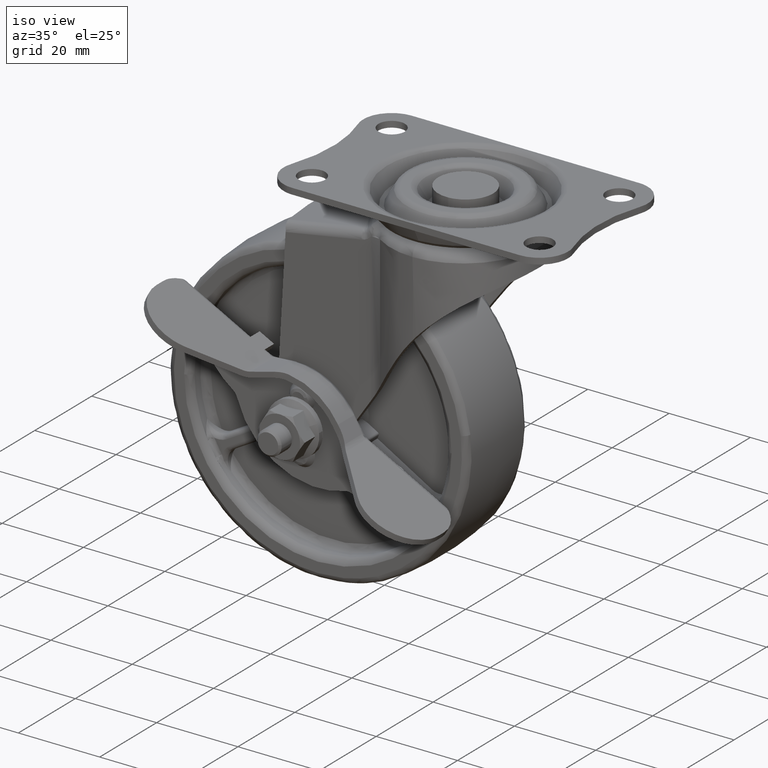
[diagram: clean part render]
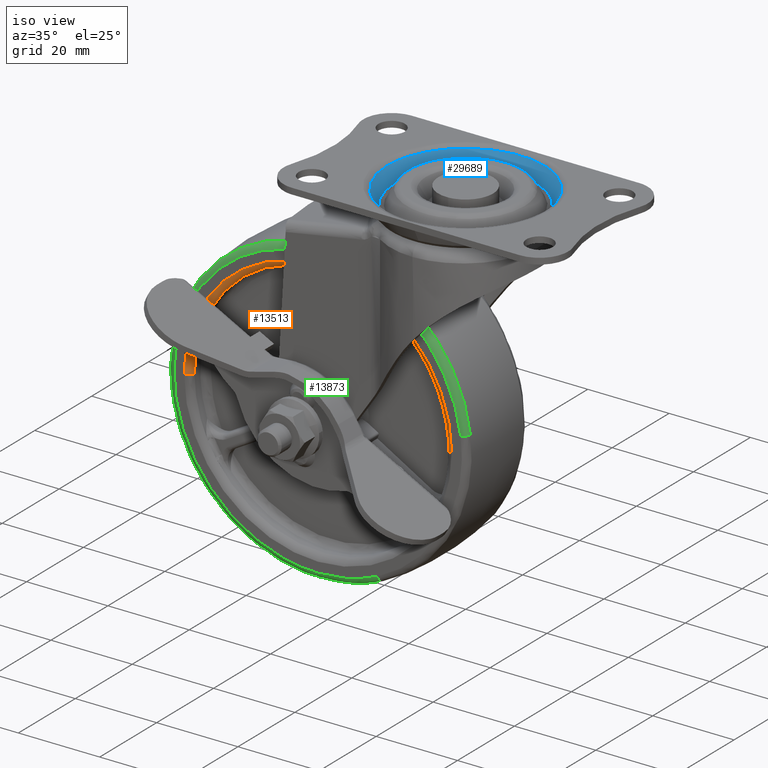
[diagram: same view with three faces highlighted in distinct colors, each labeled with its STEP entity id]
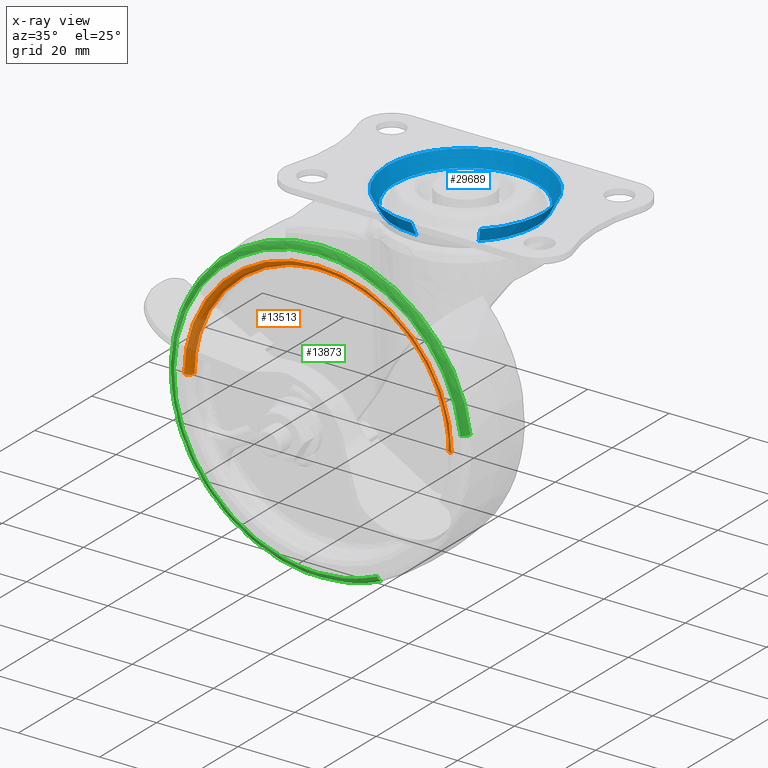
[diagram: x-ray of the same camera — body ghosted, the three highlighted faces saturated]
A machine part, iso view with three faces highlighted in distinct colors.
The next image is the same camera in x-ray (body ghosted, the three faces saturated) — at least one of them is partly hidden behind the body in this view.
Their STEP definitions:

[orange] entity #13513 — the highlighted face is a freeform B-spline surface patch.
#13379=CARTESIAN_POINT('',(4.004027370578045,-10.496388420888982,-52.999995999999996));
#13380=CARTESIAN_POINT('',(4.004027370578050,-10.496388420888980,-19.995968629421974));
#13381=CARTESIAN_POINT('',(-28.999999999999996,-10.496388420888982,-19.995968629421963));
#13382=CARTESIAN_POINT('',(-62.004027370578029,-10.496388420888980,-19.995968629421956));
#13383=CARTESIAN_POINT('',(-62.004027370578044,-10.496388420888982,-52.999995999999996));
#13384=CARTESIAN_POINT('',(2.283390871203736,-10.616005285235074,-52.999996000000003));
#13385=CARTESIAN_POINT('',(2.283390871203743,-10.616005285235072,-21.716605128796267));
#13386=CARTESIAN_POINT('',(-29.0,-10.616005285235074,-21.716605128796271));
#13387=CARTESIAN_POINT('',(-60.283390871203721,-10.616005285235072,-21.716605128796257));
#13388=CARTESIAN_POINT('',(-60.283390871203721,-10.616005285235074,-52.999995999999989));
#13389=CARTESIAN_POINT('',(2.403650547595809,-8.895413594144728,-52.999996000000017));
#13390=CARTESIAN_POINT('',(2.403650547595813,-8.895413594144729,-21.596345452404208));
#13391=CARTESIAN_POINT('',(-29.000000000000004,-8.895413594144728,-21.596345452404204));
#13392=CARTESIAN_POINT('',(-60.403650547595781,-8.895413594144729,-21.596345452404194));
#13393=CARTESIAN_POINT('',(-60.403650547595817,-8.895413594144728,-52.999995999999996));
#13401=(BOUNDED_SURFACE()B_SPLINE_SURFACE(2,2,((#13379,#13384,#13389),(#13380,#13385,#13390),(#13381,#13386,#13391),(#13382,#13387,#13392),(#13383,#13388,#13393)),.UNSPECIFIED.,.F.,.F.,.U.)B_SPLINE_SURFACE_WITH_KNOTS((3,2,3),(3,3),(0.0,54.682862999305058,109.365725998610100),(0.0,2.733557470195423),.UNSPECIFIED.)GEOMETRIC_REPRESENTATION_ITEM()RATIONAL_B_SPLINE_SURFACE(((0.910068603666740,0.595552741890964,0.905027209731593),(0.643515680997725,0.421119382345342,0.639950877159549),(0.910068603666740,0.595552741890964,0.905027209731593),(0.643515680997725,0.421119382345342,0.639950877159549),(0.910068603666740,0.595552741890964,0.905027209731593)))REPRESENTATION_ITEM('')SURFACE());
#13402=CARTESIAN_POINT('',(3.899999998638952,-10.500000000000000,-52.999996000000010));
#13403=VERTEX_POINT('',#13402);
#13404=CARTESIAN_POINT('',(-29.0,-10.500000000000000,-20.099996000000001));
#13405=VERTEX_POINT('',#13404);
#13406=CARTESIAN_POINT('',(3.899999998638952,-10.500000000000002,-52.999996000000017));
#13407=CARTESIAN_POINT('',(3.900000000000003,-10.500000000000000,-20.099996000000001));
#13408=CARTESIAN_POINT('',(-29.0,-10.500000000000000,-20.099996000000001));
#13416=(BOUNDED_CURVE()B_SPLINE_CURVE(2,(#13406,#13407,#13408),.UNSPECIFIED.,.F.,.U.)B_SPLINE_CURVE_WITH_KNOTS((3,3),(0.250000000000000,0.500000000000000),.UNSPECIFIED.)CURVE()GEOMETRIC_REPRESENTATION_ITEM()RATIONAL_B_SPLINE_CURVE((1.000000000000000,0.707106781186547,1.0))REPRESENTATION_ITEM(''));
#13417=EDGE_CURVE('',#13403,#13405,#13416,.T.);
#13418=ORIENTED_EDGE('',*,*,#13417,.T.);
#13419=CARTESIAN_POINT('',(-61.899999998638947,-10.500000000000000,-52.999996000000003));
#13420=VERTEX_POINT('',#13419);
#13421=CARTESIAN_POINT('',(-29.0,-10.500000000000000,-20.099996000000001));
#13422=CARTESIAN_POINT('',(-61.899999999999828,-10.500000000000000,-20.099995999999997));
#13423=CARTESIAN_POINT('',(-61.899999998638954,-10.500000000000002,-52.999995999999996));
#13431=(BOUNDED_CURVE()B_SPLINE_CURVE(2,(#13421,#13422,#13423),.UNSPECIFIED.,.F.,.U.)B_SPLINE_CURVE_WITH_KNOTS((3,3),(0.500000000000000,0.749999999999999),.UNSPECIFIED.)CURVE()GEOMETRIC_REPRESENTATION_ITEM()RATIONAL_B_SPLINE_CURVE((1.0,0.707106781186549,0.999999999999998))REPRESENTATION_ITEM(''));
#13432=EDGE_CURVE('',#13405,#13420,#13431,.T.);
#13433=ORIENTED_EDGE('',*,*,#13432,.T.);
#13434=CARTESIAN_POINT('',(-60.399999999999991,-9.000000001035696,-52.999996000000010));
#13435=VERTEX_POINT('',#13434);
#13436=CARTESIAN_POINT('',(-61.899999998638968,-10.500000000000000,-52.999995999999996));
#13437=CARTESIAN_POINT('',(-60.400000002071380,-10.499999997277918,-52.999996000000003));
#13438=CARTESIAN_POINT('',(-60.399999999999999,-9.000000001035698,-52.999996000000010));
#13446=(BOUNDED_CURVE()B_SPLINE_CURVE(2,(#13436,#13437,#13438),.UNSPECIFIED.,.F.,.U.)B_SPLINE_CURVE_WITH_KNOTS((3,3),(-1.726807297659921,-0.285995335448263),.UNSPECIFIED.)CURVE()GEOMETRIC_REPRESENTATION_ITEM()RATIONAL_B_SPLINE_CURVE((0.882788775549554,0.622603438321529,0.878205638556592))REPRESENTATION_ITEM(''));
#13447=EDGE_CURVE('',#13420,#13435,#13446,.T.);
#13448=ORIENTED_EDGE('',*,*,#13447,.T.);
#13449=CARTESIAN_POINT('',(-30.905903414708501,-9.0,-21.657891217873399));
#13450=VERTEX_POINT('',#13449);
#13451=CARTESIAN_POINT('',(-30.905903414708490,-9.0,-21.657891217873409));
#13452=CARTESIAN_POINT('',(-47.753721379693459,-9.0,-22.682401665179533));
#13453=CARTESIAN_POINT('',(-56.193194235143807,-9.0,-37.299990035359698));
#13454=CARTESIAN_POINT('',(-60.399999999999999,-9.0,-44.586387666730133));
#13455=CARTESIAN_POINT('',(-60.399999999999984,-9.000000001035696,-52.999996000000003));
#13463=(BOUNDED_CURVE()B_SPLINE_CURVE(2,(#13451,#13452,#13453,#13454,#13455),.UNSPECIFIED.,.F.,.U.)B_SPLINE_CURVE_WITH_KNOTS((3,2,3),(0.0,0.500000000000000,0.765080099151672),.UNSPECIFIED.)CURVE()GEOMETRIC_REPRESENTATION_ITEM()RATIONAL_B_SPLINE_CURVE((1.0,0.880807559666287,1.0,0.936808912196420,0.940620623674739))REPRESENTATION_ITEM(''));
#13464=EDGE_CURVE('',#13450,#13435,#13463,.T.);
#13465=ORIENTED_EDGE('',*,*,#13464,.F.);
#13466=CARTESIAN_POINT('',(-27.094082835941901,-9.0,-21.657892053969999));
#13467=VERTEX_POINT('',#13466);
#13468=CARTESIAN_POINT('',(-27.094082835941901,-9.0,-21.657892053970009));
#13469=CARTESIAN_POINT('',(-28.999993099903730,-9.0,-21.541993418336155));
#13470=CARTESIAN_POINT('',(-30.905903414708490,-9.0,-21.657891217873409));
#13478=(BOUNDED_CURVE()B_SPLINE_CURVE(2,(#13468,#13469,#13470),.UNSPECIFIED.,.F.,.U.)CURVE()GEOMETRIC_REPRESENTATION_ITEM()QUASI_UNIFORM_CURVE()RATIONAL_B_SPLINE_CURVE((1.0,0.998156189938823,1.0))REPRESENTATION_ITEM(''));
#13479=EDGE_CURVE('',#13467,#13450,#13478,.T.);
#13480=ORIENTED_EDGE('',*,*,#13479,.F.);
#13481=CARTESIAN_POINT('',(2.399999999999991,-9.000000001039036,-52.999996000000010));
#13482=VERTEX_POINT('',#13481);
#13483=CARTESIAN_POINT('',(2.399999999999991,-9.000000001039036,-52.999996000000010));
#13484=CARTESIAN_POINT('',(2.399999999999995,-9.000000000000002,-44.586395048595129));
#13485=CARTESIAN_POINT('',(-1.806798877482384,-9.0,-37.300001964641062));
#13486=CARTESIAN_POINT('',(-10.246265320397189,-9.0,-22.682409892181788));
#13487=CARTESIAN_POINT('',(-27.094082835941901,-9.0,-21.657892053970009));
#13495=(BOUNDED_CURVE()B_SPLINE_CURVE(2,(#13483,#13484,#13485,#13486,#13487),.UNSPECIFIED.,.F.,.U.)B_SPLINE_CURVE_WITH_KNOTS((3,2,3),(0.234920118725620,0.500000000000000,1.0),.UNSPECIFIED.)CURVE()GEOMETRIC_REPRESENTATION_ITEM()RATIONAL_B_SPLINE_CURVE((0.940620617408865,0.936808964135072,1.0,0.880807559666288,1.0))REPRESENTATION_ITEM(''));
#13496=EDGE_CURVE('',#13482,#13467,#13495,.T.);
#13497=ORIENTED_EDGE('',*,*,#13496,.F.);
#13498=CARTESIAN_POINT('',(3.899999998638952,-10.500000000000000,-52.999996000000010));
#13499=CARTESIAN_POINT('',(2.400000002078055,-10.499999997277921,-52.999996000000010));
#13500=CARTESIAN_POINT('',(2.399999999999991,-9.000000001039036,-52.999996000000010));
#13508=(BOUNDED_CURVE()B_SPLINE_CURVE(2,(#13498,#13499,#13500),.UNSPECIFIED.,.F.,.U.)B_SPLINE_CURVE_WITH_KNOTS((3,3),(-1.726807297659923,-0.285995335452785),.UNSPECIFIED.)CURVE()GEOMETRIC_REPRESENTATION_ITEM()RATIONAL_B_SPLINE_CURVE((0.882788775549554,0.622603438322345,0.878205638554987))REPRESENTATION_ITEM(''));
#13509=EDGE_CURVE('',#13403,#13482,#13508,.T.);
#13510=ORIENTED_EDGE('',*,*,#13509,.F.);
#13511=EDGE_LOOP('',(#13418,#13433,#13448,#13465,#13480,#13497,#13510));
#13512=FACE_OUTER_BOUND('',#13511,.T.);
#13513=ADVANCED_FACE('',(#13512),#13401,.T.);

[blue] entity #29689 — the highlighted face is a freeform B-spline surface patch.
#29519=CARTESIAN_POINT('',(12.036305673494859,-12.638677654428708,-2.887699185253217));
#29520=CARTESIAN_POINT('',(17.518445294510880,-7.417822274815131,-2.887699185253217));
#29521=CARTESIAN_POINT('',(17.452381797865652,0.152304628583828,-2.887699185253217));
#29522=CARTESIAN_POINT('',(17.300077169281824,17.604686426449472,-2.887699185253217));
#29523=CARTESIAN_POINT('',(-0.152304628583828,17.452381797865652,-2.887699185253217));
#29524=CARTESIAN_POINT('',(-17.604686426449472,17.300077169281824,-2.887699185253217));
#29525=CARTESIAN_POINT('',(-17.452381797865652,-0.152304628583828,-2.887699185253217));
#29526=CARTESIAN_POINT('',(-17.300077169281824,-17.604686426449472,-2.887699185253217));
#29527=CARTESIAN_POINT('',(0.152304628583828,-17.452381797865652,-2.887699185253217));
#29528=CARTESIAN_POINT('',(13.397120359779654,-14.067596014755807,0.797890989297241));
#29529=CARTESIAN_POINT('',(19.499066116574550,-8.256475077896351,0.797890989297241));
#29530=CARTESIAN_POINT('',(19.425533536067469,0.169524062934222,0.797890989297241));
#29531=CARTESIAN_POINT('',(19.256009473133251,19.595057599001699,0.797890989297241));
#29532=CARTESIAN_POINT('',(-0.169524062934222,19.425533536067469,0.797890989297241));
#29533=CARTESIAN_POINT('',(-19.595057599001699,19.256009473133251,0.797890989297241));
#29534=CARTESIAN_POINT('',(-19.425533536067469,-0.169524062934222,0.797890989297241));
#29535=CARTESIAN_POINT('',(-19.256009473133251,-19.595057599001699,0.797890989297241));
#29536=CARTESIAN_POINT('',(0.169524062934222,-19.425533536067469,0.797890989297241));
#29544=(BOUNDED_SURFACE()B_SPLINE_SURFACE(2,1,((#29519,#29528),(#29520,#29529),(#29521,#29530),(#29522,#29531),(#29523,#29532),(#29524,#29533),(#29525,#29534),(#29526,#29535),(#29527,#29536)),.UNSPECIFIED.,.F.,.F.,.U.)B_SPLINE_SURFACE_WITH_KNOTS((3,2,2,2,3),(2,2),(0.0,16.736981742682659,48.923485093995453,81.109988445308232,113.296491796621000),(0.0,4.180574030636358),.UNSPECIFIED.)GEOMETRIC_REPRESENTATION_ITEM()RATIONAL_B_SPLINE_SURFACE(((0.853787705168325,0.853787705168325),(0.847695526217005,0.847695526217005),(1.0,1.0),(0.707106781186548,0.707106781186548),(1.0,1.0),(0.707106781186548,0.707106781186548),(1.0,1.0),(0.707106781186548,0.707106781186548),(1.0,1.0)))REPRESENTATION_ITEM('')SURFACE());
#29545=CARTESIAN_POINT('',(13.363929755360310,-14.032744344993271,0.707998539736880));
#29546=VERTEX_POINT('',#29545);
#29547=CARTESIAN_POINT('',(19.378145740966652,0.0,0.707998539736826));
#29548=VERTEX_POINT('',#29547);
#29549=CARTESIAN_POINT('',(13.363929755360303,-14.032744344993262,0.707998539736880));
#29550=CARTESIAN_POINT('',(19.378145740966655,-8.305171890933407,0.707998539736826));
#29551=CARTESIAN_POINT('',(19.378145740966652,0.0,0.707998539736826));
#29559=(BOUNDED_CURVE()B_SPLINE_CURVE(2,(#29549,#29550,#29551),.UNSPECIFIED.,.F.,.U.)B_SPLINE_CURVE_WITH_KNOTS((3,3),(0.371317023849581,0.500000000000000),.UNSPECIFIED.)CURVE()GEOMETRIC_REPRESENTATION_ITEM()RATIONAL_B_SPLINE_CURVE((0.853680523245774,0.849238515635236,1.0))REPRESENTATION_ITEM(''));
#29560=EDGE_CURVE('',#29546,#29548,#29559,.T.);
#29561=ORIENTED_EDGE('',*,*,#29560,.T.);
#29562=CARTESIAN_POINT('',(7.086251062903790,18.036007827729520,0.707998546015523));
#29563=VERTEX_POINT('',#29562);
#29564=CARTESIAN_POINT('',(19.378145740966652,0.0,0.707998539736826));
#29565=CARTESIAN_POINT('',(19.378145740966662,13.206588112057140,0.707998539736826));
#29566=CARTESIAN_POINT('',(7.086251062903790,18.036007827729520,0.707998546015523));
#29574=(BOUNDED_CURVE()B_SPLINE_CURVE(2,(#29564,#29565,#29566),.UNSPECIFIED.,.F.,.U.)B_SPLINE_CURVE_WITH_KNOTS((3,3),(0.500000000000000,0.687908131213872),.UNSPECIFIED.)CURVE()GEOMETRIC_REPRESENTATION_ITEM()RATIONAL_B_SPLINE_CURVE((1.0,0.779851930430194,0.890644759606018))REPRESENTATION_ITEM(''));
#29575=EDGE_CURVE('',#29548,#29563,#29574,.T.);
#29576=ORIENTED_EDGE('',*,*,#29575,.T.);
#29577=CARTESIAN_POINT('',(-17.097167974268679,9.121369399757967,0.707998544992555));
#29578=VERTEX_POINT('',#29577);
#29579=CARTESIAN_POINT('',(7.086251062903790,18.036007827729524,0.707998546015523));
#29580=CARTESIAN_POINT('',(3.670226177731497,19.378145740966652,0.707998539736826));
#29581=CARTESIAN_POINT('',(0.0,19.378145740966652,0.707998539736826));
#29582=CARTESIAN_POINT('',(-11.625159624386034,19.378145740966655,0.707998539736826));
#29583=CARTESIAN_POINT('',(-17.097167974268679,9.121369399757967,0.707998544992555));
#29591=(BOUNDED_CURVE()B_SPLINE_CURVE(2,(#29579,#29580,#29581,#29582,#29583),.UNSPECIFIED.,.F.,.U.)B_SPLINE_CURVE_WITH_KNOTS((3,2,3),(0.687908131213873,0.750000000000000,0.919885466190171),.UNSPECIFIED.)CURVE()GEOMETRIC_REPRESENTATION_ITEM()RATIONAL_B_SPLINE_CURVE((0.890644759606019,0.927254850756355,1.0,0.800966795911747,0.872436381134345))REPRESENTATION_ITEM(''));
#29592=EDGE_CURVE('',#29563,#29578,#29591,.T.);
#29593=ORIENTED_EDGE('',*,*,#29592,.T.);
#29594=CARTESIAN_POINT('',(-19.378145740966652,0.0,0.707998539736826));
#29595=VERTEX_POINT('',#29594);
#29596=CARTESIAN_POINT('',(-17.097167974268675,9.121369399757967,0.707998544992555));
#29597=CARTESIAN_POINT('',(-19.378145740966655,4.845886369996108,0.707998539736826));
#29598=CARTESIAN_POINT('',(-19.378145740966652,0.0,0.707998539736826));
#29606=(BOUNDED_CURVE()B_SPLINE_CURVE(2,(#29596,#29597,#29598),.UNSPECIFIED.,.F.,.U.)B_SPLINE_CURVE_WITH_KNOTS((3,3),(0.919885466190172,1.0),.UNSPECIFIED.)CURVE()GEOMETRIC_REPRESENTATION_ITEM()RATIONAL_B_SPLINE_CURVE((0.872436381134345,0.906139985274801,1.0))REPRESENTATION_ITEM(''));
#29607=EDGE_CURVE('',#29578,#29595,#29606,.T.);
#29608=ORIENTED_EDGE('',*,*,#29607,.T.);
#29609=CARTESIAN_POINT('',(0.169104076704414,-19.377407880555069,0.707998539737401));
#29610=VERTEX_POINT('',#29609);
#29611=CARTESIAN_POINT('',(-19.378145740966652,0.0,0.707998539736826));
#29612=CARTESIAN_POINT('',(-19.378145740966659,-19.378145740966659,0.707998539736826));
#29613=CARTESIAN_POINT('',(0.0,-19.378145740966652,0.707998539736826));
#29614=CARTESIAN_POINT('',(0.084553648125725,-19.378145740966655,0.707998539736826));
#29615=CARTESIAN_POINT('',(0.169104076704414,-19.377407880555065,0.707998539737401));
#29623=(BOUNDED_CURVE()B_SPLINE_CURVE(2,(#29611,#29612,#29613,#29614,#29615),.UNSPECIFIED.,.F.,.U.)B_SPLINE_CURVE_WITH_KNOTS((3,2,3),(0.0,0.250000000000000,0.251539894335045),.UNSPECIFIED.)CURVE()GEOMETRIC_REPRESENTATION_ITEM()RATIONAL_B_SPLINE_CURVE((1.0,0.707106781186548,1.0,0.998195901566304,0.996414028100271))REPRESENTATION_ITEM(''));
#29624=EDGE_CURVE('',#29595,#29610,#29623,.T.);
#29625=ORIENTED_EDGE('',*,*,#29624,.T.);
#29626=CARTESIAN_POINT('',(0.152714371232738,-17.499333653623971,-2.799999240586109));
#29627=VERTEX_POINT('',#29626);
#29628=CARTESIAN_POINT('',(0.152714371232738,-17.499333653623971,-2.799999240586109));
#29629=CARTESIAN_POINT('',(0.169104076704414,-19.377407880555069,0.707998539737401));
#29630=QUASI_UNIFORM_CURVE('',1,(#29628,#29629),.UNSPECIFIED.,.F.,.U.);
#29631=EDGE_CURVE('',#29627,#29610,#29630,.T.);
#29632=ORIENTED_EDGE('',*,*,#29631,.F.);
#29633=CARTESIAN_POINT('',(-17.500000000000000,0.0,-2.799999240588125));
#29634=VERTEX_POINT('',#29633);
#29635=CARTESIAN_POINT('',(0.152714371232738,-17.499333653623964,-2.799999240586109));
#29636=CARTESIAN_POINT('',(0.076358639373457,-17.500000000000004,-2.799999240588126));
#29637=CARTESIAN_POINT('',(0.0,-17.500000000000000,-2.799999240588125));
#29638=CARTESIAN_POINT('',(-17.499999999999996,-17.499999999999996,-2.799999240588126));
#29639=CARTESIAN_POINT('',(-17.500000000000000,0.0,-2.799999240588125));
#29647=(BOUNDED_CURVE()B_SPLINE_CURVE(2,(#29635,#29636,#29637,#29638,#29639),.UNSPECIFIED.,.F.,.U.)B_SPLINE_CURVE_WITH_KNOTS((3,2,3),(0.748460105664788,0.750000000000000,1.0),.UNSPECIFIED.)CURVE()GEOMETRIC_REPRESENTATION_ITEM()RATIONAL_B_SPLINE_CURVE((0.996414028099885,0.998195901566108,1.0,0.707106781186548,1.0))REPRESENTATION_ITEM(''));
#29648=EDGE_CURVE('',#29627,#29634,#29647,.T.);
#29649=ORIENTED_EDGE('',*,*,#29648,.T.);
#29650=CARTESIAN_POINT('',(17.500000000000000,0.0,-2.799999240588125));
#29651=VERTEX_POINT('',#29650);
#29652=CARTESIAN_POINT('',(-17.500000000000000,0.0,-2.799999240588125));
#29653=CARTESIAN_POINT('',(-17.499999999999996,17.499999999999996,-2.799999240588126));
#29654=CARTESIAN_POINT('',(0.0,17.500000000000000,-2.799999240588125));
#29655=CARTESIAN_POINT('',(17.499999999999996,17.499999999999996,-2.799999240588126));
#29656=CARTESIAN_POINT('',(17.500000000000000,0.0,-2.799999240588125));
#29664=(BOUNDED_CURVE()B_SPLINE_CURVE(2,(#29652,#29653,#29654,#29655,#29656),.UNSPECIFIED.,.F.,.U.)B_SPLINE_CURVE_WITH_KNOTS((3,2,3),(0.0,0.250000000000000,0.500000000000000),.UNSPECIFIED.)CURVE()GEOMETRIC_REPRESENTATION_ITEM()RATIONAL_B_SPLINE_CURVE((1.0,0.707106781186548,1.0,0.707106781186548,1.0))REPRESENTATION_ITEM(''));
#29665=EDGE_CURVE('',#29634,#29651,#29664,.T.);
#29666=ORIENTED_EDGE('',*,*,#29665,.T.);
#29667=CARTESIAN_POINT('',(12.068686748720079,-12.672679281086079,-2.799999240588099));
#29668=VERTEX_POINT('',#29667);
#29669=CARTESIAN_POINT('',(17.500000000000000,0.0,-2.799999240588125));
#29670=CARTESIAN_POINT('',(17.499999999999996,-7.500227835738187,-2.799999240588126));
#29671=CARTESIAN_POINT('',(12.068686748720083,-12.672679281086085,-2.799999240588100));
#29679=(BOUNDED_CURVE()B_SPLINE_CURVE(2,(#29669,#29670,#29671),.UNSPECIFIED.,.F.,.U.)B_SPLINE_CURVE_WITH_KNOTS((3,3),(0.500000000000000,0.628682976150460),.UNSPECIFIED.)CURVE()GEOMETRIC_REPRESENTATION_ITEM()RATIONAL_B_SPLINE_CURVE((1.0,0.849238515635188,0.853680523245776))REPRESENTATION_ITEM(''));
#29680=EDGE_CURVE('',#29651,#29668,#29679,.T.);
#29681=ORIENTED_EDGE('',*,*,#29680,.T.);
#29682=CARTESIAN_POINT('',(12.068686748720079,-12.672679281086079,-2.799999240588099));
#29683=CARTESIAN_POINT('',(13.363929755360310,-14.032744344993271,0.707998539736880));
#29684=QUASI_UNIFORM_CURVE('',1,(#29682,#29683),.UNSPECIFIED.,.F.,.U.);
#29685=EDGE_CURVE('',#29668,#29546,#29684,.T.);
#29686=ORIENTED_EDGE('',*,*,#29685,.T.);
#29687=EDGE_LOOP('',(#29561,#29576,#29593,#29608,#29625,#29632,#29649,#29666,#29681,#29686));
#29688=FACE_OUTER_BOUND('',#29687,.T.);
#29689=ADVANCED_FACE('',(#29688),#29544,.F.);

[green] entity #13873 — the highlighted face is a freeform B-spline surface patch.
#13662=CARTESIAN_POINT('',(-14.437557268822410,-10.500000000000000,-85.272789813515743));
#13663=VERTEX_POINT('',#13662);
#13664=CARTESIAN_POINT('',(6.126996954559891,-10.500000000000000,-48.562424307732762));
#13665=VERTEX_POINT('',#13664);
#13681=CARTESIAN_POINT('',(-13.825960608572490,-9.197079144007684,-86.628189679534898));
#13682=VERTEX_POINT('',#13681);
#13683=CARTESIAN_POINT('',(-13.825960608572482,-9.197079144007684,-86.628189679534898));
#13684=CARTESIAN_POINT('',(-13.896984322974468,-10.499999941291550,-86.470789322141925));
#13685=CARTESIAN_POINT('',(-14.437557268822417,-10.499999999999996,-85.272789813515743));
#13693=(BOUNDED_CURVE()B_SPLINE_CURVE(2,(#13683,#13684,#13685),.UNSPECIFIED.,.F.,.U.)B_SPLINE_CURVE_WITH_KNOTS((3,3),(-1.712239444666651,-0.294711429674666),.UNSPECIFIED.)CURVE()GEOMETRIC_REPRESENTATION_ITEM()RATIONAL_B_SPLINE_CURVE((0.808153353673131,0.607094563690876,0.806191184356550))REPRESENTATION_ITEM(''));
#13694=EDGE_CURVE('',#13682,#13663,#13693,.T.);
#13696=CARTESIAN_POINT('',(7.602269366789335,-9.197065561839022,-48.376054061176347));
#13697=VERTEX_POINT('',#13696);
#13713=CARTESIAN_POINT('',(7.602269366789336,-9.197065561839022,-48.376054061176347));
#13714=CARTESIAN_POINT('',(7.430959383771268,-10.499999972444646,-48.397695544852766));
#13715=CARTESIAN_POINT('',(6.126996954559891,-10.500000000000000,-48.562424307732755));
#13723=(BOUNDED_CURVE()B_SPLINE_CURVE(2,(#13713,#13714,#13715),.UNSPECIFIED.,.F.,.U.)B_SPLINE_CURVE_WITH_KNOTS((3,3),(-1.712249212428798,-0.294711404213345),.UNSPECIFIED.)CURVE()GEOMETRIC_REPRESENTATION_ITEM()RATIONAL_B_SPLINE_CURVE((0.891734699425862,0.669878065903291,0.889566555258736))REPRESENTATION_ITEM(''));
#13724=EDGE_CURVE('',#13697,#13665,#13723,.T.);
#13729=CARTESIAN_POINT('',(7.611847618544084,-9.100160392505499,-48.374844046585721));
#13730=CARTESIAN_POINT('',(2.986695665129778,-9.100160392505497,-11.762996428041625));
#13731=CARTESIAN_POINT('',(-33.625151953414296,-9.100160392505499,-16.388148381455917));
#13732=CARTESIAN_POINT('',(-70.236999571958378,-9.100160392505497,-21.013300334870216));
#13733=CARTESIAN_POINT('',(-65.611847618544090,-9.100160392505499,-57.625147953414313));
#13734=CARTESIAN_POINT('',(-60.986695665129780,-9.100160392505497,-94.236995571958403));
#13735=CARTESIAN_POINT('',(-24.374848046585704,-9.100160392505499,-89.611843618544086));
#13736=CARTESIAN_POINT('',(-18.874976195956979,-9.100160392505496,-88.917048226120912));
#13737=CARTESIAN_POINT('',(-13.821989973789380,-9.100160392505496,-86.636990935337380));
#13738=CARTESIAN_POINT('',(7.512648818716629,-10.594225116498635,-48.387375769310509));
#13739=CARTESIAN_POINT('',(2.900028588027128,-10.594225116498635,-11.874726950593871));
#13740=CARTESIAN_POINT('',(-33.612620230689487,-10.594225116498635,-16.487347181283372));
#13741=CARTESIAN_POINT('',(-70.125269049406114,-10.594225116498635,-21.099967411972862));
#13742=CARTESIAN_POINT('',(-65.512648818716656,-10.594225116498635,-57.612616230689483));
#13743=CARTESIAN_POINT('',(-60.900028588027098,-10.594225116498635,-94.125265049406124));
#13744=CARTESIAN_POINT('',(-24.387379769310499,-10.594225116498635,-89.512644818716623));
#13745=CARTESIAN_POINT('',(-18.902409671045433,-10.594225116498636,-88.819731955407349));
#13746=CARTESIAN_POINT('',(-13.863114376853014,-10.594225116498638,-86.545852417496050));
#13747=CARTESIAN_POINT('',(6.030195811105133,-10.496823302011698,-48.574653136337631));
#13748=CARTESIAN_POINT('',(1.604852947442753,-10.496823302011697,-13.544457325232498));
#13749=CARTESIAN_POINT('',(-33.425342863662380,-10.496823302011698,-17.969800188894869));
#13750=CARTESIAN_POINT('',(-68.455538674767510,-10.496823302011697,-22.395143052557238));
#13751=CARTESIAN_POINT('',(-64.030195811105145,-10.496823302011698,-57.425338863662361));
#13752=CARTESIAN_POINT('',(-59.604852947442744,-10.496823302011697,-92.455534674767506));
#13753=CARTESIAN_POINT('',(-24.574657136337628,-10.496823302011698,-88.030191811105126));
#13754=CARTESIAN_POINT('',(-19.312382752623510,-10.496823302011698,-87.365411958997655));
#13755=CARTESIAN_POINT('',(-14.477688294218403,-10.496823302011702,-85.183854388102773));
#13763=(BOUNDED_SURFACE()B_SPLINE_SURFACE(2,2,((#13729,#13738,#13747),(#13730,#13739,#13748),(#13731,#13740,#13749),(#13732,#13741,#13750),(#13733,#13742,#13751),(#13734,#13743,#13752),(#13735,#13744,#13753),(#13736,#13745,#13754),(#13737,#13746,#13755)),.UNSPECIFIED.,.F.,.F.,.U.)B_SPLINE_SURFACE_WITH_KNOTS((3,2,2,2,3),(3,3),(0.0,61.142623154542143,122.285246309084300,183.427869463626390,195.656393365658000),(0.0,2.482239819280272),.UNSPECIFIED.)GEOMETRIC_REPRESENTATION_ITEM()RATIONAL_B_SPLINE_SURFACE(((0.915002998491048,0.646719169226601,0.912616068925101),(0.647004825039045,0.457299510083460,0.645317010956749),(0.915002998491048,0.646719169226601,0.912616068925101),(0.647004825039045,0.457299510083460,0.645317010956749),(0.915002998491048,0.646719169226601,0.912616068925101),(0.647004825039045,0.457299510083460,0.645317010956749),(0.915002998491048,0.646719169226601,0.912616068925101),(0.861403366995435,0.608835239656031,0.859156260517883),(0.829243586820152,0.586104881010466,0.827080374198972)))REPRESENTATION_ITEM('')SURFACE());
#13764=CARTESIAN_POINT('',(-29.0,-10.500000000000000,-88.406181285288994));
#13765=VERTEX_POINT('',#13764);
#13766=CARTESIAN_POINT('',(-29.0,-10.500000000000000,-88.406181285288994));
#13767=CARTESIAN_POINT('',(-21.381673716563174,-10.500000000000002,-88.406181285289009));
#13768=CARTESIAN_POINT('',(-14.437557268822410,-10.499999999999996,-85.272789813515743));
#13776=(BOUNDED_CURVE()B_SPLINE_CURVE(2,(#13766,#13767,#13768),.UNSPECIFIED.,.F.,.U.)B_SPLINE_CURVE_WITH_KNOTS((3,3),(0.0,0.069848532310321),.UNSPECIFIED.)CURVE()GEOMETRIC_REPRESENTATION_ITEM()RATIONAL_B_SPLINE_CURVE((1.0,0.918167354168939,0.882061829988837))REPRESENTATION_ITEM(''));
#13777=EDGE_CURVE('',#13765,#13663,#13776,.T.);
#13778=ORIENTED_EDGE('',*,*,#13777,.F.);
#13779=CARTESIAN_POINT('',(-29.0,-10.500000000000000,-17.593810714711001));
#13780=VERTEX_POINT('',#13779);
#13781=CARTESIAN_POINT('',(-29.0,-10.500000000000000,-17.593810714711001));
#13782=CARTESIAN_POINT('',(-64.406185285288998,-10.500000000000000,-17.593810714711008));
#13783=CARTESIAN_POINT('',(-64.406185285288998,-10.500000000000000,-52.999996000000003));
#13784=CARTESIAN_POINT('',(-64.406185285288998,-10.500000000000000,-88.406181285288994));
#13785=CARTESIAN_POINT('',(-29.0,-10.500000000000000,-88.406181285288994));
#13793=(BOUNDED_CURVE()B_SPLINE_CURVE(2,(#13781,#13782,#13783,#13784,#13785),.UNSPECIFIED.,.F.,.U.)B_SPLINE_CURVE_WITH_KNOTS((3,2,3),(0.500000000000000,0.750000000000000,1.0),.UNSPECIFIED.)CURVE()GEOMETRIC_REPRESENTATION_ITEM()RATIONAL_B_SPLINE_CURVE((1.0,0.707106781186547,1.0,0.707106781186547,1.0))REPRESENTATION_ITEM(''));
#13794=EDGE_CURVE('',#13780,#13765,#13793,.T.);
#13795=ORIENTED_EDGE('',*,*,#13794,.F.);
#13796=CARTESIAN_POINT('',(6.126996954559891,-10.500000000000004,-48.562424307732748));
#13797=CARTESIAN_POINT('',(2.214751231603649,-10.500000000000000,-17.593810714711008));
#13798=CARTESIAN_POINT('',(-29.0,-10.500000000000000,-17.593810714711001));
#13806=(BOUNDED_CURVE()B_SPLINE_CURVE(2,(#13796,#13797,#13798),.UNSPECIFIED.,.F.,.U.)B_SPLINE_CURVE_WITH_KNOTS((3,3),(0.271678743521471,0.500000000000000),.UNSPECIFIED.)CURVE()GEOMETRIC_REPRESENTATION_ITEM()RATIONAL_B_SPLINE_CURVE((0.953608357586089,0.732505009065887,1.0))REPRESENTATION_ITEM(''));
#13807=EDGE_CURVE('',#13665,#13780,#13806,.T.);
#13808=ORIENTED_EDGE('',*,*,#13807,.F.);
#13809=ORIENTED_EDGE('',*,*,#13724,.F.);
#13810=CARTESIAN_POINT('',(-29.0,-9.197053912586586,-16.106810460436630));
#13811=VERTEX_POINT('',#13810);
#13812=CARTESIAN_POINT('',(7.602269366789336,-9.197065561839022,-48.376054061176340));
#13813=CARTESIAN_POINT('',(3.525716955183426,-9.197053912586586,-16.106810460436627));
#13814=CARTESIAN_POINT('',(-29.0,-9.197053912586586,-16.106810460436630));
#13822=(BOUNDED_CURVE()B_SPLINE_CURVE(2,(#13812,#13813,#13814),.UNSPECIFIED.,.F.,.U.)B_SPLINE_CURVE_WITH_KNOTS((3,3),(0.271678734600639,0.500000000000000),.UNSPECIFIED.)CURVE()GEOMETRIC_REPRESENTATION_ITEM()RATIONAL_B_SPLINE_CURVE((0.953608374863727,0.732504998614482,1.0))REPRESENTATION_ITEM(''));
#13823=EDGE_CURVE('',#13697,#13811,#13822,.T.);
#13824=ORIENTED_EDGE('',*,*,#13823,.T.);
#13825=CARTESIAN_POINT('',(-65.646431200407577,-9.197057098331250,-48.740161686782109));
#13826=VERTEX_POINT('',#13825);
#13827=CARTESIAN_POINT('',(-29.0,-9.197053912586586,-16.106810460436630));
#13828=CARTESIAN_POINT('',(-61.853081962217765,-9.197055505458918,-16.106812031070913));
#13829=CARTESIAN_POINT('',(-65.646431200407577,-9.197057098331250,-48.740161686782116));
#13837=(BOUNDED_CURVE()B_SPLINE_CURVE(2,(#13827,#13828,#13829),.UNSPECIFIED.,.F.,.U.)B_SPLINE_CURVE_WITH_KNOTS((3,3),(0.500000000000000,0.730000040960203),.UNSPECIFIED.)CURVE()GEOMETRIC_REPRESENTATION_ITEM()RATIONAL_B_SPLINE_CURVE((1.0,0.730538190703761,0.956886198810285))REPRESENTATION_ITEM(''));
#13838=EDGE_CURVE('',#13811,#13826,#13837,.T.);
#13839=ORIENTED_EDGE('',*,*,#13838,.T.);
#13840=CARTESIAN_POINT('',(-29.0,-9.197080291970760,-89.893178043361004));
#13841=VERTEX_POINT('',#13840);
#13842=CARTESIAN_POINT('',(-65.646431200407577,-9.197057098331250,-48.740161686782116));
#13843=CARTESIAN_POINT('',(-65.893185018028319,-9.197057696522746,-50.862931978050796));
#13844=CARTESIAN_POINT('',(-65.893184929592607,-9.197058368276737,-52.999995664500261));
#13845=CARTESIAN_POINT('',(-65.893183402883324,-9.197069965096494,-89.893177885328171));
#13846=CARTESIAN_POINT('',(-29.0,-9.197080291970760,-89.893178043361004));
#13854=(BOUNDED_CURVE()B_SPLINE_CURVE(2,(#13842,#13843,#13844,#13845,#13846),.UNSPECIFIED.,.F.,.U.)B_SPLINE_CURVE_WITH_KNOTS((3,2,3),(0.730000040960203,0.750000000000000,1.0),.UNSPECIFIED.)CURVE()GEOMETRIC_REPRESENTATION_ITEM()RATIONAL_B_SPLINE_CURVE((0.956886198810285,0.976568590482787,1.0,0.707106781186548,1.0))REPRESENTATION_ITEM(''));
#13855=EDGE_CURVE('',#13826,#13841,#13854,.T.);
#13856=ORIENTED_EDGE('',*,*,#13855,.T.);
#13857=CARTESIAN_POINT('',(-29.0,-9.197080291970760,-89.893178043361004));
#13858=CARTESIAN_POINT('',(-21.061717607158965,-9.197080291970760,-89.893178043361004));
#13859=CARTESIAN_POINT('',(-13.825960608572490,-9.197079144007684,-86.628189679534898));
#13867=(BOUNDED_CURVE()B_SPLINE_CURVE(2,(#13857,#13858,#13859),.UNSPECIFIED.,.F.,.U.)B_SPLINE_CURVE_WITH_KNOTS((3,3),(0.0,0.069848532038178),.UNSPECIFIED.)CURVE()GEOMETRIC_REPRESENTATION_ITEM()RATIONAL_B_SPLINE_CURVE((1.0,0.918167354487774,0.882061830270185))REPRESENTATION_ITEM(''));
#13868=EDGE_CURVE('',#13841,#13682,#13867,.T.);
#13869=ORIENTED_EDGE('',*,*,#13868,.T.);
#13870=ORIENTED_EDGE('',*,*,#13694,.T.);
#13871=EDGE_LOOP('',(#13778,#13795,#13808,#13809,#13824,#13839,#13856,#13869,#13870));
#13872=FACE_OUTER_BOUND('',#13871,.T.);
#13873=ADVANCED_FACE('',(#13872),#13763,.T.);